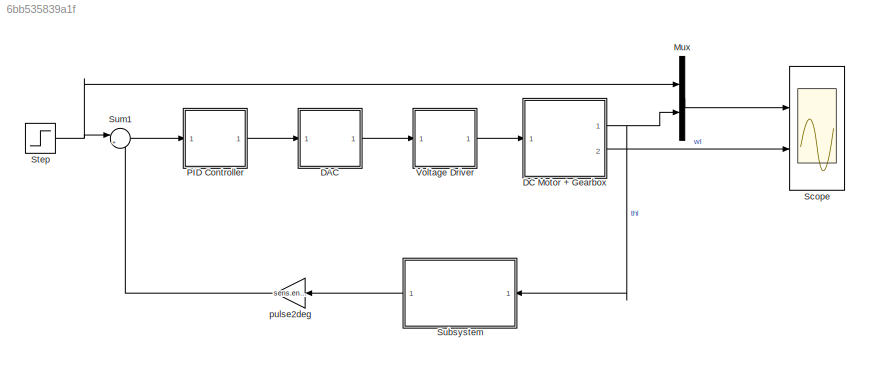
MODEL slx_6bb535839a1f
KIND model
CONFIG AbsTol = auto
CONFIG EnableMultiTasking = off
CONFIG FixedStep = auto
CONFIG MaxStep = auto
CONFIG MinStep = auto
CONFIG RelTol = 1e-3
CONFIG SampleTimeConstraint = Unconstrained
CONFIG SolverName = ode45
CONFIG StartTime = 0.0
CONFIG StopTime = 5
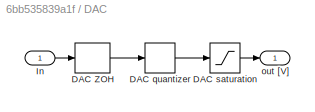
BLOCK [SubSystem] DAC
  Ports = [1, 1]
  RequestExecContextInheritance = off
BLOCK [ZeroOrderHold] DAC/DAC ZOH
  SampleTime = 0.001
BLOCK [Quantizer] DAC/DAC quantizer
  QuantizationInterval = daq.dac.q
BLOCK [Saturate] DAC/DAC saturation
  LowerLimit = -daq.dac.fs
  UpperLimit = daq.dac.fs
BLOCK [Inport] DAC/In
BLOCK [Outport] DAC/out [V]
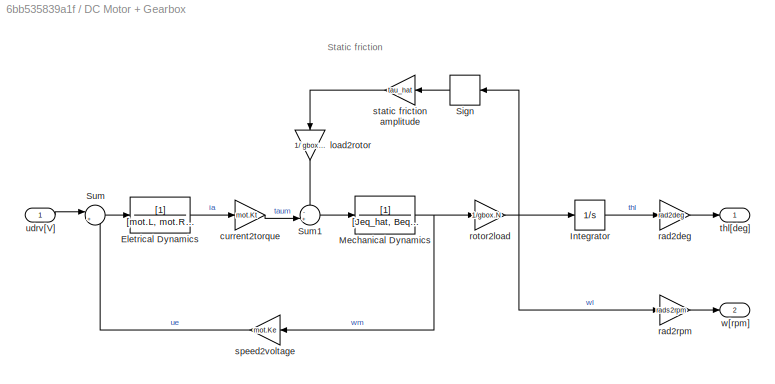
BLOCK [SubSystem] DC Motor + Gearbox
  Ports = [1, 2]
  RequestExecContextInheritance = off
BLOCK [TransferFcn] DC Motor + Gearbox/Eletrical Dynamics
  Denominator = [mot.L, mot.R+sens.curr.Rs]
BLOCK [Integrator] DC Motor + Gearbox/Integrator
  Ports = [1, 1]
BLOCK [TransferFcn] DC Motor + Gearbox/Mechanical Dynamics
  Denominator = [Jeq_hat, Beq_hat]
BLOCK [Signum] DC Motor + Gearbox/Sign
  ZeroCross = off
BLOCK [Sum] DC Motor + Gearbox/Sum
  Inputs = |+-
  Ports = [2, 1]
BLOCK [Sum] DC Motor + Gearbox/Sum1
  Inputs = -+|
  Ports = [2, 1]
BLOCK [Gain] DC Motor + Gearbox/current2torque
  Gain = mot.Kt
BLOCK [Gain] DC Motor + Gearbox/load2rotor
  Gain = 1/ gbox.N
  NameLocation = left
BLOCK [Gain] DC Motor + Gearbox/rad2deg
  Gain = rad2deg
BLOCK [Gain] DC Motor + Gearbox/rad2rpm 
  Gain = rads2rpm
BLOCK [Gain] DC Motor + Gearbox/rotor2load
  Gain = 1/gbox.N
BLOCK [Gain] DC Motor + Gearbox/speed2voltage
  Gain = mot.Ke
BLOCK [Gain] DC Motor + Gearbox/static friction amplitude
  Gain = tau_hat
BLOCK [Outport] DC Motor + Gearbox/thl[deg]
  VectorParamsAs1DForOutWhenUnconnected = off
BLOCK [Inport] DC Motor + Gearbox/udrv[V]
BLOCK [Outport] DC Motor + Gearbox/w[rpm]
  Port = 2
  VectorParamsAs1DForOutWhenUnconnected = off
BLOCK [Mux] Mux
  DisplayOption = bar
  Inputs = 2
  Ports = [2, 1]
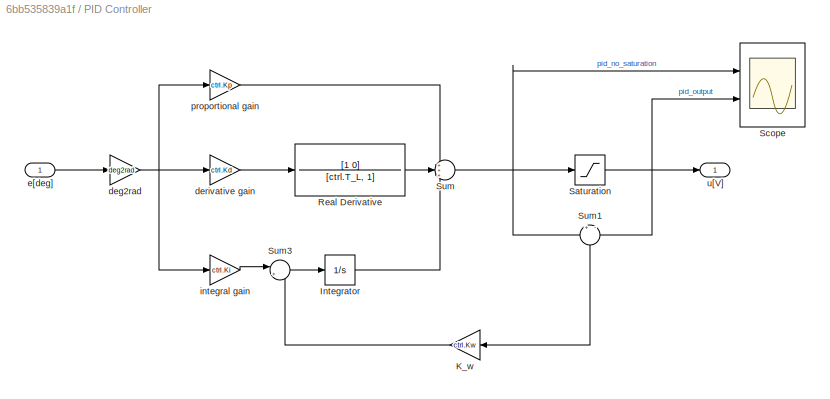
BLOCK [SubSystem] PID Controller
  Ports = [1, 1]
  RequestExecContextInheritance = off
BLOCK [Integrator] PID Controller/Integrator
  Ports = [1, 1]
BLOCK [Gain] PID Controller/K_w
  Gain = ctrl.Kw
BLOCK [TransferFcn] PID Controller/Real Derivative
  Denominator = [ctrl.T_L, 1]
  Numerator = [1 0]
BLOCK [Saturate] PID Controller/Saturation
  LowerLimit = -10
  UpperLimit = 10
BLOCK [Scope] PID Controller/Scope
  Floating = off
  NumInputPorts = 2
  Ports = [2]
  ScopeSpecificationString = Simulink.scopes.TimeScopeBlockCfg('CurrentConfiguration', extmgr.ConfigurationSet(extmgr.Configuration('Core','General UI',true),extmgr.Configuration('Core','Source UI',true),extmgr.Configuration('Sources','WiredSimulink',true,'DataLogging',true,'DataLoggingSaveFormat','StructureWithTime','DataLoggingVariableName','PID_data'),extmgr.Configuration('Visuals','Time Domain',true,'SerializedDisplays',{...<+2147ch>
BLOCK [Sum] PID Controller/Sum
  Inputs = +++
  Ports = [3, 1]
BLOCK [Sum] PID Controller/Sum1
  Inputs = +|-
  NameLocation = left
  Ports = [2, 1]
BLOCK [Sum] PID Controller/Sum3
  Inputs = |+-
  Ports = [2, 1]
BLOCK [Gain] PID Controller/deg2rad
  Gain = deg2rad
BLOCK [Gain] PID Controller/derivative gain
  Gain = ctrl.Kd
BLOCK [Inport] PID Controller/e[deg]
BLOCK [Gain] PID Controller/integral gain
  Gain = ctrl.Ki
BLOCK [Gain] PID Controller/proportional gain
  Gain = ctrl.Kp
BLOCK [Outport] PID Controller/u[V]
BLOCK [Scope] Scope
  Floating = off
  NumInputPorts = 2
  Ports = [2]
  ScopeSpecificationString = Simulink.scopes.TimeScopeBlockCfg('CurrentConfiguration', extmgr.ConfigurationSet(extmgr.Configuration('Core','General UI',true),extmgr.Configuration('Core','Source UI',true),extmgr.Configuration('Sources','WiredSimulink',true,'DataLogging',true,'DataLoggingSaveFormat','StructureWithTime','DataLoggingVariableName','MotorData'),extmgr.Configuration('Visuals','Time Domain',true,'SerializedDisplays',...<+2130ch>
BLOCK [Step] Step
  After = step_size
  SampleTime = 0
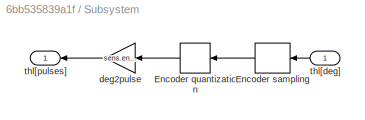
BLOCK [SubSystem] Subsystem
  Ports = [1, 1]
  RequestExecContextInheritance = off
BLOCK [Quantizer] Subsystem/Encoder quantization
  QuantizationInterval = sens.enc.pulse2deg
BLOCK [ZeroOrderHold] Subsystem/Encoder sampling
  SampleTime = -1
BLOCK [Gain] Subsystem/deg2pulse
  Gain = sens.enc.deg2pulse
BLOCK [Inport] Subsystem/thl[deg]
BLOCK [Outport] Subsystem/thl[pulses]
BLOCK [Sum] Sum1
  Inputs = |+-
  Ports = [2, 1]
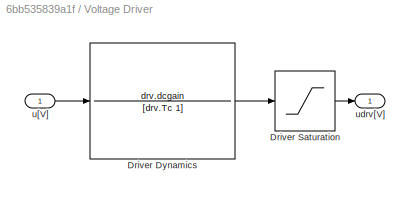
BLOCK [SubSystem] Voltage Driver
  Ports = [1, 1]
  RequestExecContextInheritance = off
BLOCK [TransferFcn] Voltage Driver/Driver Dynamics
  Denominator = [drv.Tc 1]
  Numerator = drv.dcgain
BLOCK [Saturate] Voltage Driver/Driver Saturation
  LowerLimit = -12
  UpperLimit = 12
BLOCK [Inport] Voltage Driver/u[V]
BLOCK [Outport] Voltage Driver/udrv[V]
BLOCK [Gain] pulse2deg
  Gain = sens.enc.pulse2deg
ANNOTATION DC Motor + Gearbox: Static friction
LINE DAC/DAC ZOH:1 -> DAC/DAC quantizer:1
LINE DAC/DAC quantizer:1 -> DAC/DAC saturation:1
LINE DAC/DAC saturation:1 -> DAC/out [V]:1
LINE DAC/In:1 -> DAC/DAC ZOH:1
LINE DAC:1 -> Voltage Driver:1
LINE DC Motor + Gearbox/Eletrical Dynamics:1 -> DC Motor + Gearbox/current2torque:1
LINE DC Motor + Gearbox/Integrator:1 -> DC Motor + Gearbox/rad2deg:1
NET DC Motor + Gearbox/Mechanical Dynamics:1 -> DC Motor + Gearbox/rotor2load:1, DC Motor + Gearbox/speed2voltage:1
LINE DC Motor + Gearbox/Sign:1 -> DC Motor + Gearbox/static friction amplitude:1
LINE DC Motor + Gearbox/Sum1:1 -> DC Motor + Gearbox/Mechanical Dynamics:1
LINE DC Motor + Gearbox/Sum:1 -> DC Motor + Gearbox/Eletrical Dynamics:1
LINE DC Motor + Gearbox/current2torque:1 -> DC Motor + Gearbox/Sum1:2
LINE DC Motor + Gearbox/load2rotor:1 -> DC Motor + Gearbox/Sum1:1
LINE DC Motor + Gearbox/rad2deg:1 -> DC Motor + Gearbox/thl[deg]:1
LINE DC Motor + Gearbox/rad2rpm :1 -> DC Motor + Gearbox/w[rpm]:1
NET DC Motor + Gearbox/rotor2load:1 -> DC Motor + Gearbox/Integrator:1, DC Motor + Gearbox/Sign:1, DC Motor + Gearbox/rad2rpm :1
LINE DC Motor + Gearbox/speed2voltage:1 -> DC Motor + Gearbox/Sum:2
LINE DC Motor + Gearbox/static friction amplitude:1 -> DC Motor + Gearbox/load2rotor:1
LINE DC Motor + Gearbox/udrv[V]:1 -> DC Motor + Gearbox/Sum:1
NET DC Motor + Gearbox:1 -> Mux:2, Subsystem:1
LINE DC Motor + Gearbox:2 -> Scope:2
LINE Mux:1 -> Scope:1
LINE PID Controller/Integrator:1 -> PID Controller/Sum:3
LINE PID Controller/K_w:1 -> PID Controller/Sum3:2
LINE PID Controller/Real Derivative:1 -> PID Controller/Sum:2
NET PID Controller/Saturation:1 -> PID Controller/Scope:2, PID Controller/Sum1:2, PID Controller/u[V]:1
LINE PID Controller/Sum1:1 -> PID Controller/K_w:1
LINE PID Controller/Sum3:1 -> PID Controller/Integrator:1
NET PID Controller/Sum:1 -> PID Controller/Saturation:1, PID Controller/Scope:1, PID Controller/Sum1:1
NET PID Controller/deg2rad:1 -> PID Controller/derivative gain:1, PID Controller/integral gain:1, PID Controller/proportional gain:1
LINE PID Controller/derivative gain:1 -> PID Controller/Real Derivative:1
LINE PID Controller/e[deg]:1 -> PID Controller/deg2rad:1
LINE PID Controller/integral gain:1 -> PID Controller/Sum3:1
LINE PID Controller/proportional gain:1 -> PID Controller/Sum:1
LINE PID Controller:1 -> DAC:1
NET Step:1 -> Mux:1, Sum1:1
LINE Subsystem/Encoder quantization:1 -> Subsystem/deg2pulse:1
LINE Subsystem/Encoder sampling:1 -> Subsystem/Encoder quantization:1
LINE Subsystem/deg2pulse:1 -> Subsystem/thl[pulses]:1
LINE Subsystem/thl[deg]:1 -> Subsystem/Encoder sampling:1
LINE Subsystem:1 -> pulse2deg:1
LINE Sum1:1 -> PID Controller:1
LINE Voltage Driver/Driver Dynamics:1 -> Voltage Driver/Driver Saturation:1
LINE Voltage Driver/Driver Saturation:1 -> Voltage Driver/udrv[V]:1
LINE Voltage Driver/u[V]:1 -> Voltage Driver/Driver Dynamics:1
LINE Voltage Driver:1 -> DC Motor + Gearbox:1
LINE pulse2deg:1 -> Sum1:2
note: NET lines group one-source signal fan-out (src -> all destinations, sorted); 1:1 wires keep LINE
